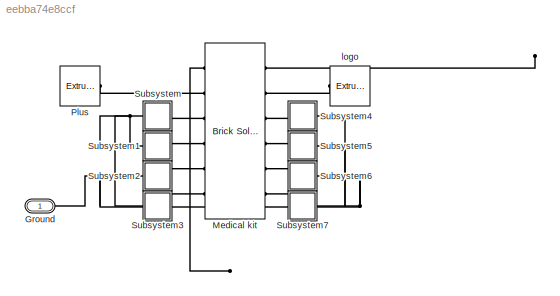
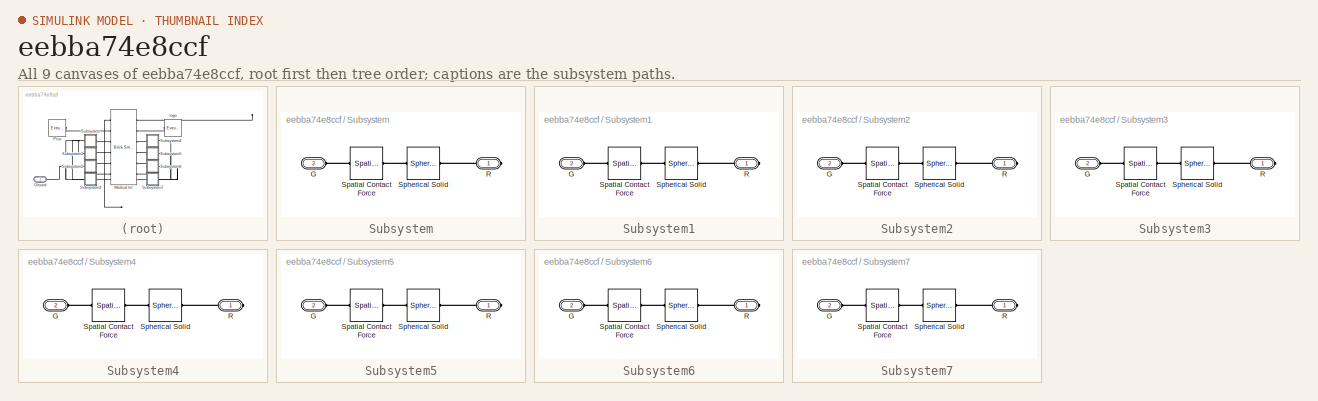
[diagram: thumbnail index - all 9 canvases of the model, root first then tree order]
MODEL slx_eebba74e8ccf
KIND library
CONFIG AbsTol = auto
CONFIG EnableMultiTasking = off
CONFIG FixedStep = auto
CONFIG MaxStep = auto
CONFIG MinStep = auto
CONFIG RelTol = 1e-3
CONFIG SampleTimeConstraint = Unconstrained
CONFIG SolverName = VariableStepAuto
CONFIG StartTime = 0.0
CONFIG StopTime = 10.0
BLOCK [PMIOPort] Ground
  Side = Left
BLOCK [Reference] Medical kit  REF=sm_lib/Body Elements/Brick Solid
  NameLocation = top
  Ports = [0, 0, 0, 0, 0, 6, 6]
  SourceBlock = sm_lib/Body Elements/Brick Solid
  SourceProductBaseCode = MS
  SourceType = Brick Solid
BLOCK [Reference] Plus  REF=sm_lib/Body Elements/Extruded Solid
  Ports = [0, 0, 0, 0, 0, 0, 1]
  SourceBlock = sm_lib/Body Elements/Extruded Solid
  SourceProductBaseCode = MS
  SourceType = Extruded Solid
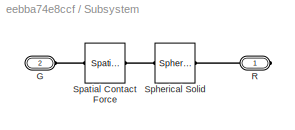
BLOCK [SubSystem] Subsystem
  Ports = [0, 0, 0, 0, 0, 1, 1]
  RequestExecContextInheritance = off
BLOCK [PMIOPort] Subsystem/G
  Port = 2
  Side = Left
BLOCK [PMIOPort] Subsystem/R
  Side = Right
BLOCK [Reference] Subsystem/Spatial Contact Force  REF=sm_lib/Forces and
Torques/Spatial
Contact Force
  NameLocation = top
  Ports = [0, 0, 0, 0, 0, 1, 1]
  SourceBlock = sm_lib/Forces and\nTorques/Spatial\nContact Force
  SourceProductBaseCode = MS
  SourceType = Spatial\nContact Force
BLOCK [Reference] Subsystem/Spherical Solid  REF=sm_lib/Body Elements/Spherical Solid
  Ports = [0, 0, 0, 0, 0, 1, 1]
  SourceBlock = sm_lib/Body Elements/Spherical Solid
  SourceProductBaseCode = MS
  SourceType = Spherical Solid
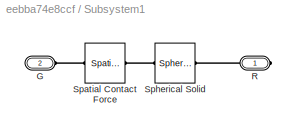
BLOCK [SubSystem] Subsystem1
  Ports = [0, 0, 0, 0, 0, 1, 1]
  RequestExecContextInheritance = off
BLOCK [PMIOPort] Subsystem1/G
  Port = 2
  Side = Left
BLOCK [PMIOPort] Subsystem1/R
  Side = Right
BLOCK [Reference] Subsystem1/Spatial Contact Force  REF=sm_lib/Forces and
Torques/Spatial
Contact Force
  NameLocation = top
  Ports = [0, 0, 0, 0, 0, 1, 1]
  SourceBlock = sm_lib/Forces and\nTorques/Spatial\nContact Force
  SourceProductBaseCode = MS
  SourceType = Spatial\nContact Force
BLOCK [Reference] Subsystem1/Spherical Solid  REF=sm_lib/Body Elements/Spherical Solid
  Ports = [0, 0, 0, 0, 0, 1, 1]
  SourceBlock = sm_lib/Body Elements/Spherical Solid
  SourceProductBaseCode = MS
  SourceType = Spherical Solid
BLOCK [SubSystem] Subsystem2
  Ports = [0, 0, 0, 0, 0, 1, 1]
  RequestExecContextInheritance = off
BLOCK [PMIOPort] Subsystem2/G
  Port = 2
  Side = Left
BLOCK [PMIOPort] Subsystem2/R
  Side = Right
BLOCK [Reference] Subsystem2/Spatial Contact Force  REF=sm_lib/Forces and
Torques/Spatial
Contact Force
  NameLocation = top
  Ports = [0, 0, 0, 0, 0, 1, 1]
  SourceBlock = sm_lib/Forces and\nTorques/Spatial\nContact Force
  SourceProductBaseCode = MS
  SourceType = Spatial\nContact Force
BLOCK [Reference] Subsystem2/Spherical Solid  REF=sm_lib/Body Elements/Spherical Solid
  Ports = [0, 0, 0, 0, 0, 1, 1]
  SourceBlock = sm_lib/Body Elements/Spherical Solid
  SourceProductBaseCode = MS
  SourceType = Spherical Solid
BLOCK [SubSystem] Subsystem3
  Ports = [0, 0, 0, 0, 0, 1, 1]
  RequestExecContextInheritance = off
BLOCK [PMIOPort] Subsystem3/G
  Port = 2
  Side = Left
BLOCK [PMIOPort] Subsystem3/R
  Side = Right
BLOCK [Reference] Subsystem3/Spatial Contact Force  REF=sm_lib/Forces and
Torques/Spatial
Contact Force
  NameLocation = top
  Ports = [0, 0, 0, 0, 0, 1, 1]
  SourceBlock = sm_lib/Forces and\nTorques/Spatial\nContact Force
  SourceProductBaseCode = MS
  SourceType = Spatial\nContact Force
BLOCK [Reference] Subsystem3/Spherical Solid  REF=sm_lib/Body Elements/Spherical Solid
  Ports = [0, 0, 0, 0, 0, 1, 1]
  SourceBlock = sm_lib/Body Elements/Spherical Solid
  SourceProductBaseCode = MS
  SourceType = Spherical Solid
BLOCK [SubSystem] Subsystem4
  Ports = [0, 0, 0, 0, 0, 1, 1]
  RequestExecContextInheritance = off
BLOCK [PMIOPort] Subsystem4/G
  Port = 2
  Side = Left
BLOCK [PMIOPort] Subsystem4/R
  Side = Right
BLOCK [Reference] Subsystem4/Spatial Contact Force  REF=sm_lib/Forces and
Torques/Spatial
Contact Force
  NameLocation = top
  Ports = [0, 0, 0, 0, 0, 1, 1]
  SourceBlock = sm_lib/Forces and\nTorques/Spatial\nContact Force
  SourceProductBaseCode = MS
  SourceType = Spatial\nContact Force
BLOCK [Reference] Subsystem4/Spherical Solid  REF=sm_lib/Body Elements/Spherical Solid
  Ports = [0, 0, 0, 0, 0, 1, 1]
  SourceBlock = sm_lib/Body Elements/Spherical Solid
  SourceProductBaseCode = MS
  SourceType = Spherical Solid
BLOCK [SubSystem] Subsystem5
  Ports = [0, 0, 0, 0, 0, 1, 1]
  RequestExecContextInheritance = off
BLOCK [PMIOPort] Subsystem5/G
  Port = 2
  Side = Left
BLOCK [PMIOPort] Subsystem5/R
  Side = Right
BLOCK [Reference] Subsystem5/Spatial Contact Force  REF=sm_lib/Forces and
Torques/Spatial
Contact Force
  NameLocation = top
  Ports = [0, 0, 0, 0, 0, 1, 1]
  SourceBlock = sm_lib/Forces and\nTorques/Spatial\nContact Force
  SourceProductBaseCode = MS
  SourceType = Spatial\nContact Force
BLOCK [Reference] Subsystem5/Spherical Solid  REF=sm_lib/Body Elements/Spherical Solid
  Ports = [0, 0, 0, 0, 0, 1, 1]
  SourceBlock = sm_lib/Body Elements/Spherical Solid
  SourceProductBaseCode = MS
  SourceType = Spherical Solid
BLOCK [SubSystem] Subsystem6
  Ports = [0, 0, 0, 0, 0, 1, 1]
  RequestExecContextInheritance = off
BLOCK [PMIOPort] Subsystem6/G
  Port = 2
  Side = Left
BLOCK [PMIOPort] Subsystem6/R
  Side = Right
BLOCK [Reference] Subsystem6/Spatial Contact Force  REF=sm_lib/Forces and
Torques/Spatial
Contact Force
  NameLocation = top
  Ports = [0, 0, 0, 0, 0, 1, 1]
  SourceBlock = sm_lib/Forces and\nTorques/Spatial\nContact Force
  SourceProductBaseCode = MS
  SourceType = Spatial\nContact Force
BLOCK [Reference] Subsystem6/Spherical Solid  REF=sm_lib/Body Elements/Spherical Solid
  Ports = [0, 0, 0, 0, 0, 1, 1]
  SourceBlock = sm_lib/Body Elements/Spherical Solid
  SourceProductBaseCode = MS
  SourceType = Spherical Solid
BLOCK [SubSystem] Subsystem7
  Ports = [0, 0, 0, 0, 0, 1, 1]
  RequestExecContextInheritance = off
BLOCK [PMIOPort] Subsystem7/G
  Port = 2
  Side = Left
BLOCK [PMIOPort] Subsystem7/R
  Side = Right
BLOCK [Reference] Subsystem7/Spatial Contact Force  REF=sm_lib/Forces and
Torques/Spatial
Contact Force
  NameLocation = top
  Ports = [0, 0, 0, 0, 0, 1, 1]
  SourceBlock = sm_lib/Forces and\nTorques/Spatial\nContact Force
  SourceProductBaseCode = MS
  SourceType = Spatial\nContact Force
BLOCK [Reference] Subsystem7/Spherical Solid  REF=sm_lib/Body Elements/Spherical Solid
  Ports = [0, 0, 0, 0, 0, 1, 1]
  SourceBlock = sm_lib/Body Elements/Spherical Solid
  SourceProductBaseCode = MS
  SourceType = Spherical Solid
BLOCK [Reference] logo  REF=sm_lib/Body Elements/Extruded Solid
  NameLocation = top
  Ports = [0, 0, 0, 0, 0, 0, 1]
  SourceBlock = sm_lib/Body Elements/Extruded Solid
  SourceProductBaseCode = MS
  SourceType = Extruded Solid
PNET net1: Ground:RConn1 -- Subsystem1:LConn1 -- Subsystem2:LConn1 -- Subsystem3:LConn1 -- Subsystem4:LConn1 -- Subsystem5:LConn1 -- Subsystem6:LConn1 -- Subsystem7:LConn1 -- Subsystem:LConn1
PLINE Medical kit:LConn2 -- logo:RConn1
PLINE Medical kit:LConn3 -- Subsystem4:RConn1
PLINE Medical kit:LConn4 -- Subsystem5:RConn1
PLINE Medical kit:LConn5 -- Subsystem6:RConn1
PLINE Medical kit:LConn6 -- Subsystem7:RConn1
PLINE Medical kit:RConn2 -- Plus:RConn1
PLINE Medical kit:RConn3 -- Subsystem:RConn1
PLINE Medical kit:RConn4 -- Subsystem1:RConn1
PLINE Medical kit:RConn5 -- Subsystem2:RConn1
PLINE Medical kit:RConn6 -- Subsystem3:RConn1
PLINE Subsystem/G:RConn1 -- Subsystem/Spatial Contact Force:RConn1
PLINE Subsystem/R:RConn1 -- Subsystem/Spherical Solid:RConn1
PLINE Subsystem/Spatial Contact Force:LConn1 -- Subsystem/Spherical Solid:LConn1
PLINE Subsystem1/G:RConn1 -- Subsystem1/Spatial Contact Force:RConn1
PLINE Subsystem1/R:RConn1 -- Subsystem1/Spherical Solid:RConn1
PLINE Subsystem1/Spatial Contact Force:LConn1 -- Subsystem1/Spherical Solid:LConn1
PLINE Subsystem2/G:RConn1 -- Subsystem2/Spatial Contact Force:RConn1
PLINE Subsystem2/R:RConn1 -- Subsystem2/Spherical Solid:RConn1
PLINE Subsystem2/Spatial Contact Force:LConn1 -- Subsystem2/Spherical Solid:LConn1
PLINE Subsystem3/G:RConn1 -- Subsystem3/Spatial Contact Force:RConn1
PLINE Subsystem3/R:RConn1 -- Subsystem3/Spherical Solid:RConn1
PLINE Subsystem3/Spatial Contact Force:LConn1 -- Subsystem3/Spherical Solid:LConn1
PLINE Subsystem4/G:RConn1 -- Subsystem4/Spatial Contact Force:RConn1
PLINE Subsystem4/R:RConn1 -- Subsystem4/Spherical Solid:RConn1
PLINE Subsystem4/Spatial Contact Force:LConn1 -- Subsystem4/Spherical Solid:LConn1
PLINE Subsystem5/G:RConn1 -- Subsystem5/Spatial Contact Force:RConn1
PLINE Subsystem5/R:RConn1 -- Subsystem5/Spherical Solid:RConn1
PLINE Subsystem5/Spatial Contact Force:LConn1 -- Subsystem5/Spherical Solid:LConn1
PLINE Subsystem6/G:RConn1 -- Subsystem6/Spatial Contact Force:RConn1
PLINE Subsystem6/R:RConn1 -- Subsystem6/Spherical Solid:RConn1
PLINE Subsystem6/Spatial Contact Force:LConn1 -- Subsystem6/Spherical Solid:LConn1
PLINE Subsystem7/G:RConn1 -- Subsystem7/Spatial Contact Force:RConn1
PLINE Subsystem7/R:RConn1 -- Subsystem7/Spherical Solid:RConn1
PLINE Subsystem7/Spatial Contact Force:LConn1 -- Subsystem7/Spherical Solid:LConn1
note: PNET lines group multi-terminal physical nets as a canonical sorted terminal list (undirected conserving connections); 2-terminal nets keep the pairwise PLINE form
